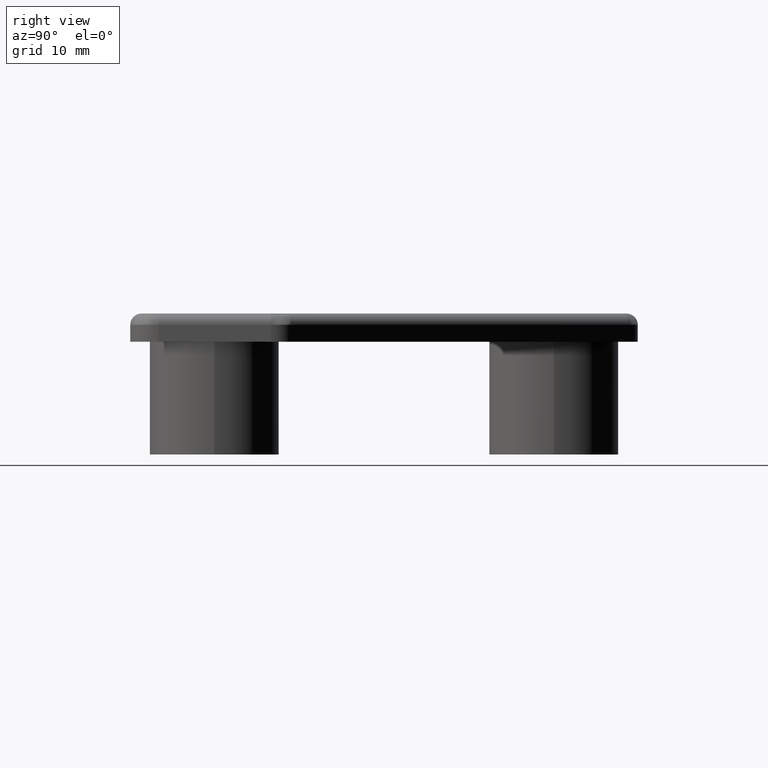
[diagram: clean part render]
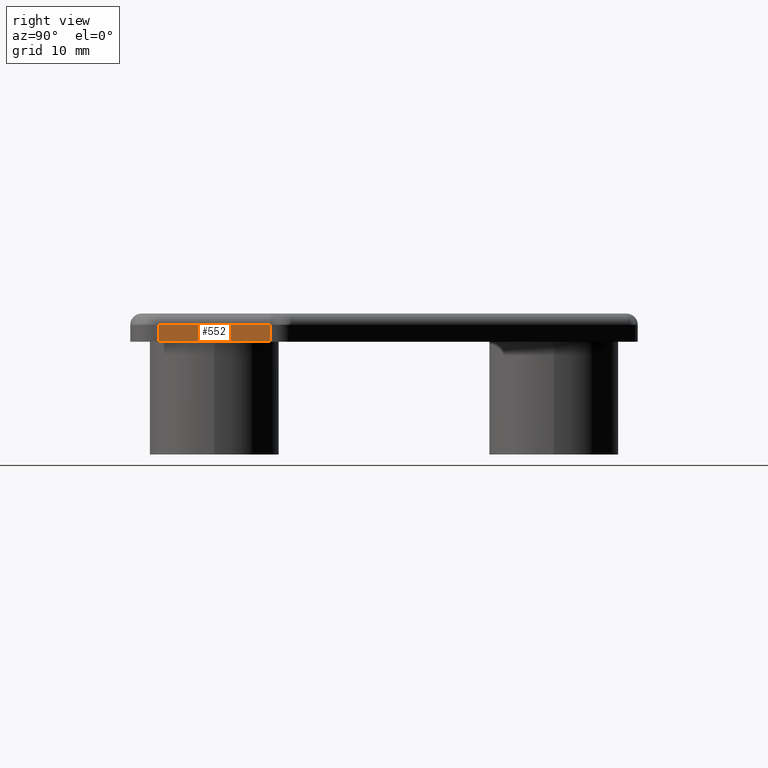
[diagram: same view with one face highlighted and labeled with its STEP entity id]
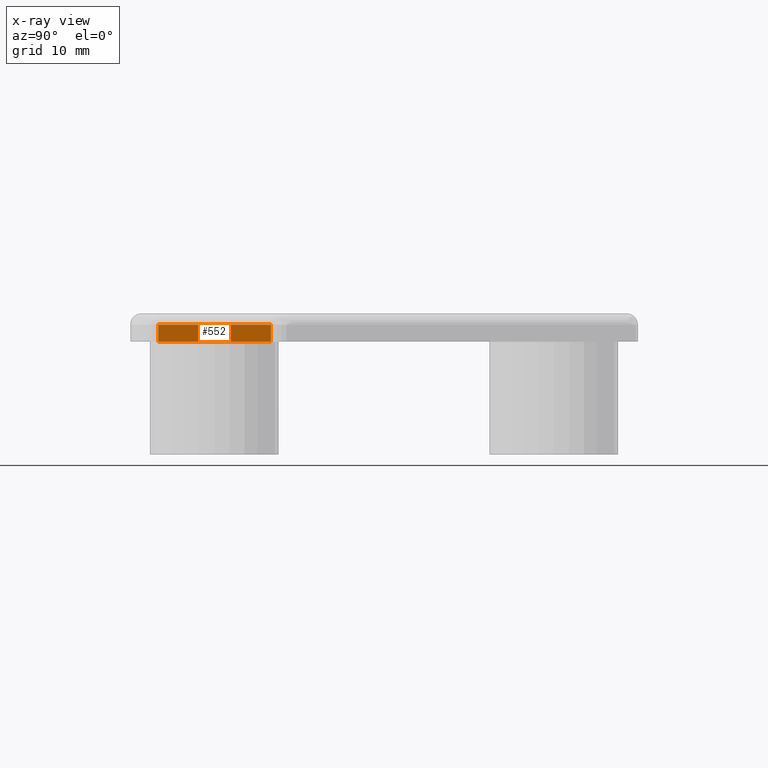
[diagram: x-ray of the same camera — body ghosted, the highlighted face saturated]
A machine part, right view. The second image highlights one B-rep face of the part: STEP entity #552.
The next image is the same camera in x-ray: the body ghosted, the highlighted face saturated — about 0% of this face is hidden behind the body in this view.
In plain terms, the highlighted planar face has unit normal (1, 0, 0).
Its self-contained STEP definition (entity closure, byte-faithful):
#68=CARTESIAN_POINT('',(22.499977203035488,12.464422160532866,0.0));
#69=VERTEX_POINT('',#68);
#77=CARTESIAN_POINT('',(22.499977203034771,2.500000999989878,0.0));
#78=VERTEX_POINT('',#77);
#79=CARTESIAN_POINT('',(22.499977203034771,2.500000999989878,0.0));
#80=DIRECTION('',(0.0,1.0,0.0));
#81=VECTOR('',#80,9.964421160542988);
#82=LINE('',#79,#81);
#83=EDGE_CURVE('',#78,#69,#82,.T.);
#510=CARTESIAN_POINT('',(22.499977203034771,2.500000999989878,1.499999999989996));
#511=VERTEX_POINT('',#510);
#512=CARTESIAN_POINT('',(22.499977203034771,2.500000999989878,0.0));
#513=DIRECTION('',(0.0,0.0,1.0));
#514=VECTOR('',#513,1.499999999989996);
#515=LINE('',#512,#514);
#516=EDGE_CURVE('',#78,#511,#515,.T.);
#529=CARTESIAN_POINT('',(22.499977203034771,2.500000999989878,0.0));
#530=DIRECTION('',(1.0,0.0,0.0));
#531=DIRECTION('',(0.0,1.0,0.0));
#532=AXIS2_PLACEMENT_3D('',#529,#530,#531);
#533=PLANE('',#532);
#534=ORIENTED_EDGE('',*,*,#83,.T.);
#535=CARTESIAN_POINT('',(22.499977203035488,12.464422160532866,1.499999999989996));
#536=VERTEX_POINT('',#535);
#537=CARTESIAN_POINT('',(22.499977203035488,12.464422160532866,0.0));
#538=DIRECTION('',(0.0,0.0,1.0));
#539=VECTOR('',#538,1.499999999989996);
#540=LINE('',#537,#539);
#541=EDGE_CURVE('',#69,#536,#540,.T.);
#542=ORIENTED_EDGE('',*,*,#541,.T.);
#543=CARTESIAN_POINT('',(22.499977203034771,2.500000999989878,1.499999999989996));
#544=DIRECTION('',(0.0,1.0,0.0));
#545=VECTOR('',#544,9.964421160542988);
#546=LINE('',#543,#545);
#547=EDGE_CURVE('',#511,#536,#546,.T.);
#548=ORIENTED_EDGE('',*,*,#547,.F.);
#549=ORIENTED_EDGE('',*,*,#516,.F.);
#550=EDGE_LOOP('',(#534,#542,#548,#549));
#551=FACE_OUTER_BOUND('',#550,.T.);
#552=ADVANCED_FACE('',(#551),#533,.T.);